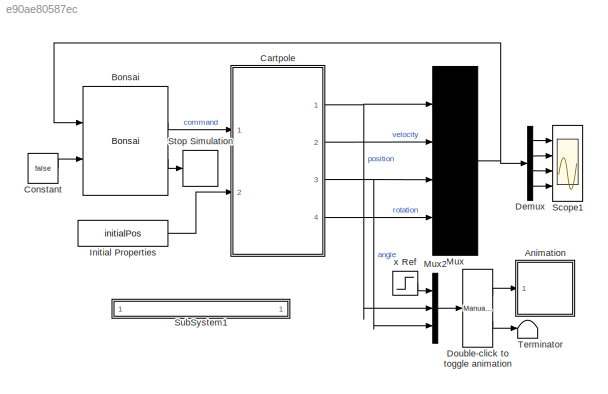
MODEL slx_e90ae80587ec
KIND model
CONFIG AbsTol = auto
CONFIG EnableMultiTasking = off
CONFIG FixedStep = auto
CONFIG MaxStep = 1e-2
CONFIG MinStep = auto
CONFIG RelTol = 1e-3
CONFIG SampleTimeConstraint = Unconstrained
CONFIG Solver = FixedStepAuto
CONFIG SolverName = FixedStepAuto
CONFIG StartTime = 0.0
CONFIG StopTime = 10000
WORKSPACE source: MATLAB code (in-file)
WORKSPACE mCart = 1
WORKSPACE mPend = 1
WORKSPACE g = 9.81
WORKSPACE L = 0.5
WORKSPACE theta0 = 0
WORKSPACE Kd = 10
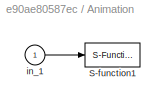
BLOCK [SubSystem] Animation
  Ports = [1]
  RequestExecContextInheritance = off
BLOCK [S-Function] Animation/S-function1
  DeleteFcn = pendcartAnimation([],[],[],'DeleteBlock');
  EnableBusSupport = off
  FunctionName = pendcartAnimation
  Parameters = RefBlock
  Ports = [1]
  SFcnIsStateOwnerBlock = off
  SFunctionDeploymentMode = off
BLOCK [Inport] Animation/in_1
  IconDisplay = Port number
BLOCK [Reference] Bonsai  REF=bonsai_library/Bonsai
  Ports = [2, 2]
  SourceBlock = bonsai_library/Bonsai
  SourceProductName = Bonsai Toolbox
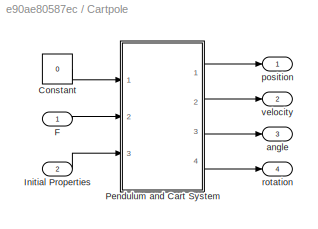
BLOCK [SubSystem] Cartpole
  Ports = [2, 4]
  RequestExecContextInheritance = off
  TreatAsAtomicUnit = on
BLOCK [Constant] Cartpole/Constant
  Value = 0
BLOCK [Inport] Cartpole/F
  IconDisplay = Port number
BLOCK [Inport] Cartpole/Initial Properties
  IconDisplay = Port number
  Port = 2
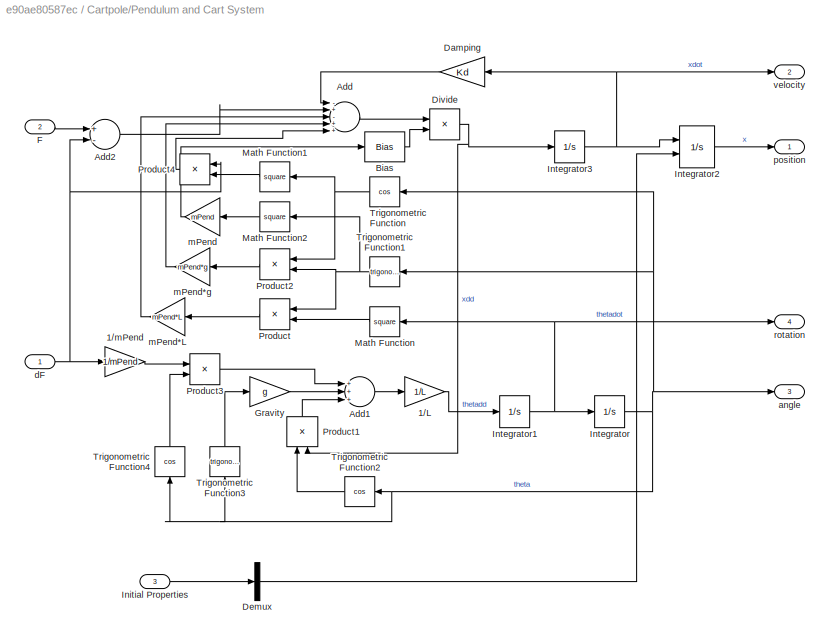
BLOCK [SubSystem] Cartpole/Pendulum and Cart System
  Ports = [3, 4]
  RequestExecContextInheritance = off
BLOCK [Gain] Cartpole/Pendulum and Cart System/1//L
  Gain = 1/L
  OutDataTypeStr = Inherit: Inherit via internal rule
  ParamDataTypeStr = Inherit: Inherit via internal rule
  SaturateOnIntegerOverflow = off
BLOCK [Gain] Cartpole/Pendulum and Cart System/1//mPend
  Gain = 1/mPend
  OutDataTypeStr = Inherit: Inherit via internal rule
  ParamDataTypeStr = Inherit: Inherit via internal rule
  SaturateOnIntegerOverflow = off
BLOCK [Sum] Cartpole/Pendulum and Cart System/Add
  InputSameDT = off
  Inputs = -+-++
  OutDataTypeStr = Inherit: Inherit via internal rule
  Ports = [5, 1]
  SaturateOnIntegerOverflow = off
BLOCK [Sum] Cartpole/Pendulum and Cart System/Add1
  InputSameDT = off
  Inputs = +++
  OutDataTypeStr = Inherit: Inherit via internal rule
  Ports = [3, 1]
  SaturateOnIntegerOverflow = off
BLOCK [Sum] Cartpole/Pendulum and Cart System/Add2
  InputSameDT = off
  Inputs = +-
  OutDataTypeStr = Inherit: Inherit via internal rule
  Ports = [2, 1]
  SaturateOnIntegerOverflow = off
BLOCK [Bias] Cartpole/Pendulum and Cart System/Bias
  Bias = mCart
  SaturateOnIntegerOverflow = off
BLOCK [Gain] Cartpole/Pendulum and Cart System/Damping
  Gain = Kd
  OutDataTypeStr = Inherit: Inherit via internal rule
  ParamDataTypeStr = Inherit: Inherit via internal rule
  SaturateOnIntegerOverflow = off
BLOCK [Demux] Cartpole/Pendulum and Cart System/Demux
  DisplayOption = bar
  Outputs = 1
  Ports = [1, 1]
BLOCK [Product] Cartpole/Pendulum and Cart System/Divide
  InputSameDT = off
  Inputs = */
  OutDataTypeStr = Inherit: Inherit via internal rule
  Ports = [2, 1]
  RndMeth = Floor
  SaturateOnIntegerOverflow = off
BLOCK [Inport] Cartpole/Pendulum and Cart System/F
  IconDisplay = Port number
  Port = 2
BLOCK [Gain] Cartpole/Pendulum and Cart System/Gravity
  Gain = g
  OutDataTypeStr = Inherit: Inherit via internal rule
  ParamDataTypeStr = Inherit: Inherit via internal rule
  SaturateOnIntegerOverflow = off
BLOCK [Inport] Cartpole/Pendulum and Cart System/Initial Properties
  IconDisplay = Port number
  Port = 3
BLOCK [Integrator] Cartpole/Pendulum and Cart System/Integrator
  Ports = [1, 1]
BLOCK [Integrator] Cartpole/Pendulum and Cart System/Integrator1
  Ports = [1, 1]
BLOCK [Integrator] Cartpole/Pendulum and Cart System/Integrator2
  InitialCondition = initialPos
  InitialConditionSource = external
  Ports = [2, 1]
BLOCK [Integrator] Cartpole/Pendulum and Cart System/Integrator3
  Ports = [1, 1]
BLOCK [Math] Cartpole/Pendulum and Cart System/Math Function
  Operator = square
  Ports = [1, 1]
BLOCK [Math] Cartpole/Pendulum and Cart System/Math Function1
  Operator = square
  Ports = [1, 1]
BLOCK [Math] Cartpole/Pendulum and Cart System/Math Function2
  Operator = square
  Ports = [1, 1]
BLOCK [Product] Cartpole/Pendulum and Cart System/Product
  InputSameDT = off
  OutDataTypeStr = Inherit: Inherit via internal rule
  Ports = [2, 1]
  RndMeth = Floor
  SaturateOnIntegerOverflow = off
BLOCK [Product] Cartpole/Pendulum and Cart System/Product1
  InputSameDT = off
  OutDataTypeStr = Inherit: Inherit via internal rule
  Ports = [2, 1]
  RndMeth = Floor
  SaturateOnIntegerOverflow = off
BLOCK [Product] Cartpole/Pendulum and Cart System/Product2
  InputSameDT = off
  OutDataTypeStr = Inherit: Inherit via internal rule
  Ports = [2, 1]
  RndMeth = Floor
  SaturateOnIntegerOverflow = off
BLOCK [Product] Cartpole/Pendulum and Cart System/Product3
  InputSameDT = off
  OutDataTypeStr = Inherit: Inherit via internal rule
  Ports = [2, 1]
  RndMeth = Floor
  SaturateOnIntegerOverflow = off
BLOCK [Product] Cartpole/Pendulum and Cart System/Product4
  InputSameDT = off
  OutDataTypeStr = Inherit: Inherit via internal rule
  Ports = [2, 1]
  RndMeth = Floor
  SaturateOnIntegerOverflow = off
BLOCK [Trigonometry] Cartpole/Pendulum and Cart System/Trigonometric Function
  Operator = cos
  Ports = [1, 1]
BLOCK [Trigonometry] Cartpole/Pendulum and Cart System/Trigonometric Function1
  Ports = [1, 1]
BLOCK [Trigonometry] Cartpole/Pendulum and Cart System/Trigonometric Function2
  Operator = cos
  Ports = [1, 1]
BLOCK [Trigonometry] Cartpole/Pendulum and Cart System/Trigonometric Function3
  Ports = [1, 1]
BLOCK [Trigonometry] Cartpole/Pendulum and Cart System/Trigonometric Function4
  Operator = cos
  Ports = [1, 1]
BLOCK [Outport] Cartpole/Pendulum and Cart System/angle
  IconDisplay = Port number
  Port = 3
  VectorParamsAs1DForOutWhenUnconnected = off
BLOCK [Inport] Cartpole/Pendulum and Cart System/dF
  IconDisplay = Port number
BLOCK [Gain] Cartpole/Pendulum and Cart System/mPend
  Gain = mPend
  OutDataTypeStr = Inherit: Inherit via internal rule
  ParamDataTypeStr = Inherit: Inherit via internal rule
  SaturateOnIntegerOverflow = off
BLOCK [Gain] Cartpole/Pendulum and Cart System/mPend*L
  Gain = mPend*L
  OutDataTypeStr = Inherit: Inherit via internal rule
  ParamDataTypeStr = Inherit: Inherit via internal rule
  SaturateOnIntegerOverflow = off
BLOCK [Gain] Cartpole/Pendulum and Cart System/mPend*g
  Gain = mPend*g
  OutDataTypeStr = Inherit: Inherit via internal rule
  ParamDataTypeStr = Inherit: Inherit via internal rule
  SaturateOnIntegerOverflow = off
BLOCK [Outport] Cartpole/Pendulum and Cart System/position
  IconDisplay = Port number
  VectorParamsAs1DForOutWhenUnconnected = off
BLOCK [Outport] Cartpole/Pendulum and Cart System/rotation
  IconDisplay = Port number
  Port = 4
  VectorParamsAs1DForOutWhenUnconnected = off
BLOCK [Outport] Cartpole/Pendulum and Cart System/velocity
  IconDisplay = Port number
  Port = 2
  VectorParamsAs1DForOutWhenUnconnected = off
BLOCK [Outport] Cartpole/angle
  IconDisplay = Port number
  Port = 3
  VectorParamsAs1DForOutWhenUnconnected = off
BLOCK [Outport] Cartpole/position
  IconDisplay = Port number
  VectorParamsAs1DForOutWhenUnconnected = off
BLOCK [Outport] Cartpole/rotation
  IconDisplay = Port number
  Port = 4
  VectorParamsAs1DForOutWhenUnconnected = off
BLOCK [Outport] Cartpole/velocity
  IconDisplay = Port number
  Port = 2
  VectorParamsAs1DForOutWhenUnconnected = off
BLOCK [Constant] Constant
  Value = false
BLOCK [Demux] Demux
  DisplayOption = bar
  Ports = [1, 4]
BLOCK [Reference] Double-click to toggle animation  REF=simulink/Signal
Routing/Manual
Variant Sink
  Ports = [1, 2]
  SourceBlock = simulink/Signal\nRouting/Manual\nVariant Sink
  SourceProductBaseCode = SL
  SourceProductName = Simulink
  SourceType = ManualVariantSink
BLOCK [Constant] Initial Properties
  SampleTime = 0.1
  Value = initialPos
BLOCK [Mux] Mux
  DisplayOption = signals
  Ports = [4, 1]
BLOCK [Mux] Mux2
  DisplayOption = bar
  Inputs = 3
  Ports = [3, 1]
BLOCK [Scope] Scope1
  Floating = off
  NumInputPorts = 4
  Ports = [4]
  ScopeSpecificationString = Simulink.scopes.TimeScopeBlockCfg('CurrentConfiguration', extmgr.ConfigurationSet(extmgr.Configuration('Core','General UI',true),extmgr.Configuration('Core','Source UI',true),extmgr.Configuration('Sources','WiredSimulink',true,'DataLoggingSaveFormat','StructureWithTime','DataLoggingDecimation','1','DataLoggingDecimateData',true,'DataLoggingVariableName','ScopeData2'),extmgr.Configuration('Visuals'...<+3643ch>
BLOCK [Stop] Stop Simulation
BLOCK [SubSystem] SubSystem1
  OpenFcn = web('https://preview.bons.ai');
  Ports = []
  RequestExecContextInheritance = off
BLOCK [Terminator] Terminator
BLOCK [Step] x Ref
  After = 10
  SampleTime = 0
LINE Animation/in_1:1 -> Animation/S-function1:1
LINE Bonsai:1 -> Cartpole:1
LINE Bonsai:2 -> Stop Simulation:1
LINE Cartpole/Constant:1 -> Cartpole/Pendulum and Cart System:1
LINE Cartpole/F:1 -> Cartpole/Pendulum and Cart System:2
LINE Cartpole/Initial Properties:1 -> Cartpole/Pendulum and Cart System:3
LINE Cartpole/Pendulum and Cart System/1//L:1 -> Cartpole/Pendulum and Cart System/Integrator1:1
LINE Cartpole/Pendulum and Cart System/1//mPend:1 -> Cartpole/Pendulum and Cart System/Product3:1
LINE Cartpole/Pendulum and Cart System/Add1:1 -> Cartpole/Pendulum and Cart System/1//L:1
LINE Cartpole/Pendulum and Cart System/Add2:1 -> Cartpole/Pendulum and Cart System/Add:2
LINE Cartpole/Pendulum and Cart System/Add:1 -> Cartpole/Pendulum and Cart System/Divide:1
LINE Cartpole/Pendulum and Cart System/Bias:1 -> Cartpole/Pendulum and Cart System/Divide:2
LINE Cartpole/Pendulum and Cart System/Damping:1 -> Cartpole/Pendulum and Cart System/Add:1
LINE Cartpole/Pendulum and Cart System/Demux:1 -> Cartpole/Pendulum and Cart System/Integrator2:2
NET Cartpole/Pendulum and Cart System/Divide:1 -> Cartpole/Pendulum and Cart System/Integrator3:1, Cartpole/Pendulum and Cart System/Product1:2
LINE Cartpole/Pendulum and Cart System/F:1 -> Cartpole/Pendulum and Cart System/Add2:1
LINE Cartpole/Pendulum and Cart System/Gravity:1 -> Cartpole/Pendulum and Cart System/Add1:2
LINE Cartpole/Pendulum and Cart System/Initial Properties:1 -> Cartpole/Pendulum and Cart System/Demux:1
NET Cartpole/Pendulum and Cart System/Integrator1:1 -> Cartpole/Pendulum and Cart System/Integrator:1, Cartpole/Pendulum and Cart System/Math Function:1, Cartpole/Pendulum and Cart System/rotation:1
LINE Cartpole/Pendulum and Cart System/Integrator2:1 -> Cartpole/Pendulum and Cart System/position:1
NET Cartpole/Pendulum and Cart System/Integrator3:1 -> Cartpole/Pendulum and Cart System/Damping:1, Cartpole/Pendulum and Cart System/Integrator2:1, Cartpole/Pendulum and Cart System/velocity:1
NET Cartpole/Pendulum and Cart System/Integrator:1 -> Cartpole/Pendulum and Cart System/Trigonometric Function1:1, Cartpole/Pendulum and Cart System/Trigonometric Function2:1, Cartpole/Pendulum and Cart System/Trigonometric Function3:1, Cartpole/Pendulum and Cart System/Trigonometric Function4:1, Cartpole/Pendulum and Cart System/Trigonometric Function:1, Cartpole/Pendulum and Cart System/angle:1
LINE Cartpole/Pendulum and Cart System/Math Function1:1 -> Cartpole/Pendulum and Cart System/Product4:2
LINE Cartpole/Pendulum and Cart System/Math Function2:1 -> Cartpole/Pendulum and Cart System/mPend:1
LINE Cartpole/Pendulum and Cart System/Math Function:1 -> Cartpole/Pendulum and Cart System/Product:2
LINE Cartpole/Pendulum and Cart System/Product1:1 -> Cartpole/Pendulum and Cart System/Add1:3
LINE Cartpole/Pendulum and Cart System/Product2:1 -> Cartpole/Pendulum and Cart System/mPend*g:1
LINE Cartpole/Pendulum and Cart System/Product3:1 -> Cartpole/Pendulum and Cart System/Add1:1
LINE Cartpole/Pendulum and Cart System/Product4:1 -> Cartpole/Pendulum and Cart System/Add:5
LINE Cartpole/Pendulum and Cart System/Product:1 -> Cartpole/Pendulum and Cart System/mPend*L:1
NET Cartpole/Pendulum and Cart System/Trigonometric Function1:1 -> Cartpole/Pendulum and Cart System/Math Function2:1, Cartpole/Pendulum and Cart System/Product2:2, Cartpole/Pendulum and Cart System/Product:1
LINE Cartpole/Pendulum and Cart System/Trigonometric Function2:1 -> Cartpole/Pendulum and Cart System/Product1:1
LINE Cartpole/Pendulum and Cart System/Trigonometric Function3:1 -> Cartpole/Pendulum and Cart System/Gravity:1
LINE Cartpole/Pendulum and Cart System/Trigonometric Function4:1 -> Cartpole/Pendulum and Cart System/Product3:2
NET Cartpole/Pendulum and Cart System/Trigonometric Function:1 -> Cartpole/Pendulum and Cart System/Math Function1:1, Cartpole/Pendulum and Cart System/Product2:1
NET Cartpole/Pendulum and Cart System/dF:1 -> Cartpole/Pendulum and Cart System/1//mPend:1, Cartpole/Pendulum and Cart System/Add2:2, Cartpole/Pendulum and Cart System/Product4:1
LINE Cartpole/Pendulum and Cart System/mPend*L:1 -> Cartpole/Pendulum and Cart System/Add:3
LINE Cartpole/Pendulum and Cart System/mPend*g:1 -> Cartpole/Pendulum and Cart System/Add:4
LINE Cartpole/Pendulum and Cart System/mPend:1 -> Cartpole/Pendulum and Cart System/Bias:1
LINE Cartpole/Pendulum and Cart System:1 -> Cartpole/position:1
LINE Cartpole/Pendulum and Cart System:2 -> Cartpole/velocity:1
LINE Cartpole/Pendulum and Cart System:3 -> Cartpole/angle:1
LINE Cartpole/Pendulum and Cart System:4 -> Cartpole/rotation:1
NET Cartpole:1 -> Mux2:2, Mux:1
LINE Cartpole:2 -> Mux:2
NET Cartpole:3 -> Mux2:3, Mux:3
LINE Cartpole:4 -> Mux:4
LINE Constant:1 -> Bonsai:2
LINE Demux:1 -> Scope1:1
LINE Demux:2 -> Scope1:2
LINE Demux:3 -> Scope1:3
LINE Demux:4 -> Scope1:4
LINE Double-click to toggle animation:1 -> Animation:1
LINE Double-click to toggle animation:2 -> Terminator:1
LINE Initial Properties:1 -> Cartpole:2
LINE Mux2:1 -> Double-click to toggle animation:1
NET Mux:1 -> Bonsai:1, Demux:1
LINE x Ref:1 -> Mux2:1
note: NET lines group one-source signal fan-out (src -> all destinations, sorted); 1:1 wires keep LINE
